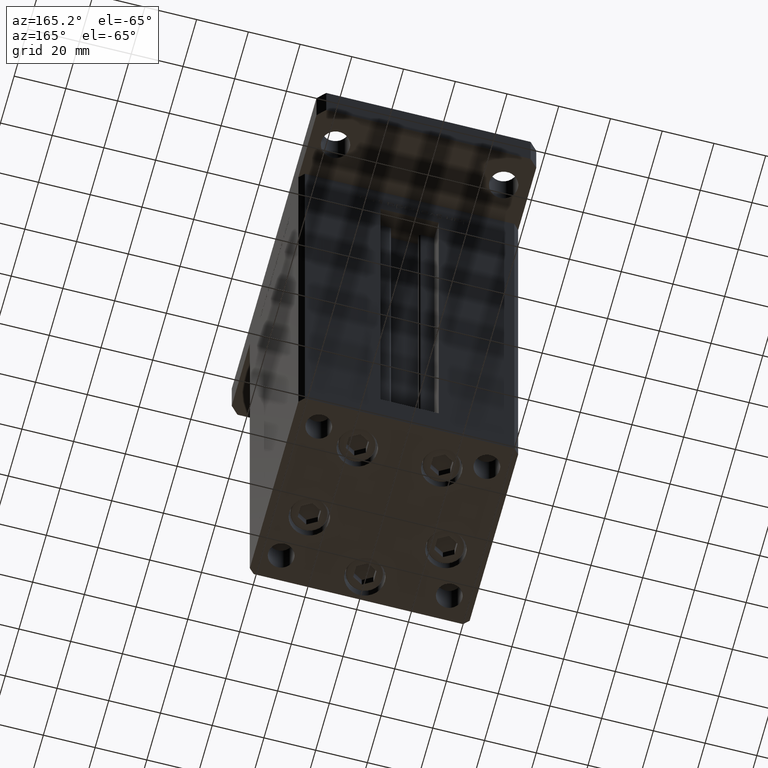
[diagram: clean part render]
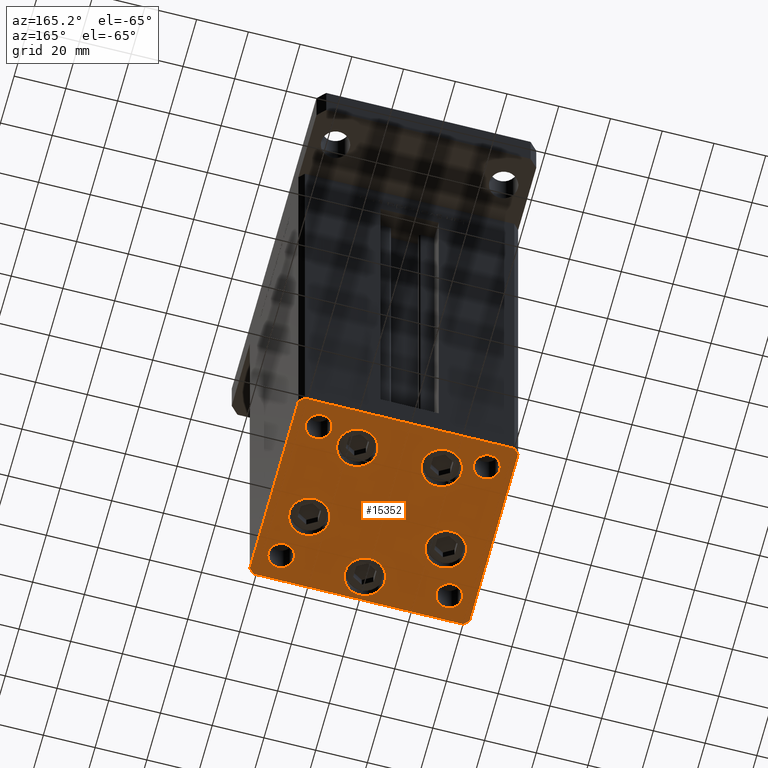
[diagram: same view with one face highlighted and labeled with its STEP entity id]
A machine part, auxiliary view. The second image highlights one B-rep face of the part: STEP entity #15352.
In plain terms, the highlighted planar face has unit normal (0, 0, -1).
Its self-contained STEP definition (entity closure, byte-faithful):
#441 = EDGE_LOOP ( 'NONE', ( #46210, #13943 ) ) ;
#462 = EDGE_CURVE ( 'NONE', #11969, #36350, #28060, .T. ) ;
#577 = EDGE_CURVE ( 'NONE', #29243, #29291, #38392, .T. ) ;
#824 = ORIENTED_EDGE ( 'NONE', *, *, #18983, .T. ) ;
#862 = FACE_BOUND ( 'NONE', #25020, .T. ) ;
#928 = AXIS2_PLACEMENT_3D ( 'NONE', #20264, #2902, #49268 ) ;
#966 = CIRCLE ( 'NONE', #928, 5.000000000000000888 ) ;
#1220 = DIRECTION ( 'NONE',  ( 0.000000000000000000, -0.000000000000000000, -1.000000000000000000 ) ) ;
#1293 = ORIENTED_EDGE ( 'NONE', *, *, #7826, .T. ) ;
#1398 = CARTESIAN_POINT ( 'NONE',  ( 26.39865316429776954, -9.333333333333330373, 0.000000000000000000 ) ) ;
#1490 = AXIS2_PLACEMENT_3D ( 'NONE', #33166, #9279, #8753 ) ;
#1553 = VERTEX_POINT ( 'NONE', #43475 ) ;
#1705 = AXIS2_PLACEMENT_3D ( 'NONE', #7838, #23856, #8102 ) ;
#1989 = EDGE_LOOP ( 'NONE', ( #43418, #25316 ) ) ;
#2520 = ORIENTED_EDGE ( 'NONE', *, *, #17603, .T. ) ;
#2709 = DIRECTION ( 'NONE',  ( 1.000000000000000000, 1.713307136767217096E-16, 0.000000000000000000 ) ) ;
#2795 = DIRECTION ( 'NONE',  ( 0.000000000000000000, -0.000000000000000000, -1.000000000000000000 ) ) ;
#2811 = CARTESIAN_POINT ( 'NONE',  ( 16.32291334290542295, 22.75000000000000000, 0.000000000000000000 ) ) ;
#2902 = DIRECTION ( 'NONE',  ( -0.000000000000000000, 0.000000000000000000, 1.000000000000000000 ) ) ;
#2998 = DIRECTION ( 'NONE',  ( -0.000000000000000000, 0.000000000000000000, 1.000000000000000000 ) ) ;
#3052 = DIRECTION ( 'NONE',  ( 1.000000000000000000, 0.000000000000000000, 0.000000000000000000 ) ) ;
#3073 = ORIENTED_EDGE ( 'NONE', *, *, #40510, .F. ) ;
#3297 = EDGE_CURVE ( 'NONE', #16725, #33220, #28127, .T. ) ;
#3658 = EDGE_LOOP ( 'NONE', ( #33090, #6039 ) ) ;
#3694 = EDGE_CURVE ( 'NONE', #22944, #8537, #48019, .T. ) ;
#3849 = CARTESIAN_POINT ( 'NONE',  ( 32.50000000000000000, 27.49999999999999645, 0.000000000000000000 ) ) ;
#4151 = ORIENTED_EDGE ( 'NONE', *, *, #44840, .T. ) ;
#4867 = DIRECTION ( 'NONE',  ( 1.000000000000000000, 0.000000000000000000, 0.000000000000000000 ) ) ;
#5441 = DIRECTION ( 'NONE',  ( 0.000000000000000000, -0.000000000000000000, -1.000000000000000000 ) ) ;
#5561 = AXIS2_PLACEMENT_3D ( 'NONE', #3849, #20419, #53494 ) ;
#5682 = VERTEX_POINT ( 'NONE', #39978 ) ;
#6039 = ORIENTED_EDGE ( 'NONE', *, *, #46910, .T. ) ;
#7383 = VECTOR ( 'NONE', #17494, 1000.000000000000114 ) ;
#7453 = VERTEX_POINT ( 'NONE', #52389 ) ;
#7597 = DIRECTION ( 'NONE',  ( -1.172770800660376741E-15, 1.000000000000000000, 0.000000000000000000 ) ) ;
#7826 = EDGE_CURVE ( 'NONE', #12740, #21531, #24397, .T. ) ;
#7838 = CARTESIAN_POINT ( 'NONE',  ( -16.32291334290543006, 22.74999999999999645, 0.000000000000000000 ) ) ;
#7865 = EDGE_CURVE ( 'NONE', #21531, #33217, #50132, .T. ) ;
#7935 = EDGE_CURVE ( 'NONE', #7453, #21453, #43330, .T. ) ;
#8102 = DIRECTION ( 'NONE',  ( 1.000000000000000000, 0.000000000000000000, 0.000000000000000000 ) ) ;
#8537 = VERTEX_POINT ( 'NONE', #11716 ) ;
#8753 = DIRECTION ( 'NONE',  ( 1.000000000000000000, 0.000000000000000000, 0.000000000000000000 ) ) ;
#9011 = FACE_OUTER_BOUND ( 'NONE', #16067, .T. ) ;
#9178 = CARTESIAN_POINT ( 'NONE',  ( 40.50000000000000000, -37.50000000000000711, 0.000000000000000000 ) ) ;
#9279 = DIRECTION ( 'NONE',  ( -0.000000000000000000, 0.000000000000000000, 1.000000000000000000 ) ) ;
#9562 = ORIENTED_EDGE ( 'NONE', *, *, #45964, .T. ) ;
#9589 = VERTEX_POINT ( 'NONE', #32285 ) ;
#9615 = CARTESIAN_POINT ( 'NONE',  ( 42.49999999999992895, 35.50000000000000000, 0.000000000000000000 ) ) ;
#9637 = AXIS2_PLACEMENT_3D ( 'NONE', #1398, #10363, #50758 ) ;
#9913 = CARTESIAN_POINT ( 'NONE',  ( 3.429011037612589276E-15, -28.00000000000000000, 0.000000000000000000 ) ) ;
#10272 = EDGE_CURVE ( 'NONE', #48808, #5682, #42203, .T. ) ;
#10363 = DIRECTION ( 'NONE',  ( 0.000000000000000000, -0.000000000000000000, -1.000000000000000000 ) ) ;
#10394 = CIRCLE ( 'NONE', #1705, 7.750000000000000000 ) ;
#10546 = CIRCLE ( 'NONE', #17469, 4.999999999999997335 ) ;
#10653 = DIRECTION ( 'NONE',  ( 1.000000000000000000, 0.000000000000000000, 0.000000000000000000 ) ) ;
#10738 = VERTEX_POINT ( 'NONE', #41285 ) ;
#10958 = DIRECTION ( 'NONE',  ( 1.000000000000000000, 0.000000000000000000, 0.000000000000000000 ) ) ;
#11716 = CARTESIAN_POINT ( 'NONE',  ( -27.50000000000000000, 27.50000000000000355, 0.000000000000000000 ) ) ;
#11749 = DIRECTION ( 'NONE',  ( 0.000000000000000000, -0.000000000000000000, -1.000000000000000000 ) ) ;
#11969 = VERTEX_POINT ( 'NONE', #51354 ) ;
#12313 = CARTESIAN_POINT ( 'NONE',  ( -26.39865316429776954, -9.333333333333337478, 0.000000000000000000 ) ) ;
#12397 = CARTESIAN_POINT ( 'NONE',  ( -37.50000000000000711, 27.50000000000000355, 0.000000000000000000 ) ) ;
#12473 = DIRECTION ( 'NONE',  ( 1.000000000000000000, 0.000000000000000000, 0.000000000000000000 ) ) ;
#12544 = EDGE_CURVE ( 'NONE', #51194, #9589, #21372, .T. ) ;
#12699 = CARTESIAN_POINT ( 'NONE',  ( 34.14865316429776954, -9.333333333333328596, 0.000000000000000000 ) ) ;
#12740 = VERTEX_POINT ( 'NONE', #40571 ) ;
#12807 = AXIS2_PLACEMENT_3D ( 'NONE', #35141, #1220, #46526 ) ;
#13099 = CIRCLE ( 'NONE', #9637, 7.750000000000000000 ) ;
#13340 = FACE_BOUND ( 'NONE', #24177, .T. ) ;
#13940 = CIRCLE ( 'NONE', #44254, 4.999999999999997335 ) ;
#13943 = ORIENTED_EDGE ( 'NONE', *, *, #49443, .T. ) ;
#14348 = FACE_BOUND ( 'NONE', #24349, .T. ) ;
#14574 = DIRECTION ( 'NONE',  ( -1.000000000000000000, -3.426614273534436165E-16, 0.000000000000000000 ) ) ;
#15087 = CARTESIAN_POINT ( 'NONE',  ( -8.572913342905431833, 22.74999999999999645, 0.000000000000000000 ) ) ;
#15352 = ADVANCED_FACE ( 'NONE', ( #29373, #13340, #37223, #25565, #862, #38020, #25303, #14348, #9011, #25034 ), #33961, .T. ) ;
#15767 = AXIS2_PLACEMENT_3D ( 'NONE', #44984, #23602, #23863 ) ;
#16067 = EDGE_LOOP ( 'NONE', ( #26011, #1293, #37584, #28340, #824, #41255, #48076, #24998 ) ) ;
#16725 = VERTEX_POINT ( 'NONE', #28241 ) ;
#17093 = CARTESIAN_POINT ( 'NONE',  ( -32.50000000000000000, -27.49999999999999645, 0.000000000000000000 ) ) ;
#17372 = ORIENTED_EDGE ( 'NONE', *, *, #35564, .T. ) ;
#17469 = AXIS2_PLACEMENT_3D ( 'NONE', #43470, #51591, #10653 ) ;
#17494 = DIRECTION ( 'NONE',  ( -0.7071067811865474617, 0.7071067811865474617, 0.000000000000000000 ) ) ;
#17580 = CARTESIAN_POINT ( 'NONE',  ( -42.50000000000000711, 35.49999999999997158, 0.000000000000000000 ) ) ;
#17603 = EDGE_CURVE ( 'NONE', #22126, #48213, #43723, .T. ) ;
#17714 = VERTEX_POINT ( 'NONE', #12699 ) ;
#18247 = CIRCLE ( 'NONE', #24304, 7.750000000000003553 ) ;
#18390 = DIRECTION ( 'NONE',  ( 9.773090005503140331E-17, -1.000000000000000000, 0.000000000000000000 ) ) ;
#18983 = EDGE_CURVE ( 'NONE', #1553, #51194, #25115, .T. ) ;
#19563 = DIRECTION ( 'NONE',  ( 1.000000000000000000, 0.000000000000000000, 0.000000000000000000 ) ) ;
#20188 = AXIS2_PLACEMENT_3D ( 'NONE', #25557, #5441, #38012 ) ;
#20264 = CARTESIAN_POINT ( 'NONE',  ( -32.50000000000000000, 27.50000000000000355, 0.000000000000000000 ) ) ;
#20363 = AXIS2_PLACEMENT_3D ( 'NONE', #27393, #47164, #43914 ) ;
#20366 = EDGE_LOOP ( 'NONE', ( #9562, #4151 ) ) ;
#20419 = DIRECTION ( 'NONE',  ( -0.000000000000000000, 0.000000000000000000, 1.000000000000000000 ) ) ;
#21056 = VERTEX_POINT ( 'NONE', #26450 ) ;
#21308 = DIRECTION ( 'NONE',  ( 1.000000000000000000, 0.000000000000000000, 0.000000000000000000 ) ) ;
#21369 = CIRCLE ( 'NONE', #40433, 7.750000000000000000 ) ;
#21372 = LINE ( 'NONE', #26236, #27598 ) ;
#21453 = VERTEX_POINT ( 'NONE', #22038 ) ;
#21481 = VECTOR ( 'NONE', #7597, 1000.000000000000000 ) ;
#21515 = VECTOR ( 'NONE', #43100, 1000.000000000000000 ) ;
#21531 = VERTEX_POINT ( 'NONE', #52670 ) ;
#22038 = CARTESIAN_POINT ( 'NONE',  ( -42.50000000000000000, -35.50000000000000711, 0.000000000000000000 ) ) ;
#22126 = VERTEX_POINT ( 'NONE', #47812 ) ;
#22139 = CARTESIAN_POINT ( 'NONE',  ( -27.50000000000000000, -27.49999999999999645, 0.000000000000000000 ) ) ;
#22409 = DIRECTION ( 'NONE',  ( 1.000000000000000000, 0.000000000000000000, 0.000000000000000000 ) ) ;
#22442 = VERTEX_POINT ( 'NONE', #29353 ) ;
#22931 = AXIS2_PLACEMENT_3D ( 'NONE', #40156, #2998, #19563 ) ;
#22944 = VERTEX_POINT ( 'NONE', #12397 ) ;
#23082 = EDGE_CURVE ( 'NONE', #22442, #10738, #21369, .T. ) ;
#23220 = ORIENTED_EDGE ( 'NONE', *, *, #25276, .T. ) ;
#23602 = DIRECTION ( 'NONE',  ( 0.000000000000000000, -0.000000000000000000, -1.000000000000000000 ) ) ;
#23856 = DIRECTION ( 'NONE',  ( 0.000000000000000000, -0.000000000000000000, -1.000000000000000000 ) ) ;
#23863 = DIRECTION ( 'NONE',  ( 1.000000000000000000, 0.000000000000000000, 0.000000000000000000 ) ) ;
#24177 = EDGE_LOOP ( 'NONE', ( #2520, #40488 ) ) ;
#24304 = AXIS2_PLACEMENT_3D ( 'NONE', #2811, #11749, #10958 ) ;
#24349 = EDGE_LOOP ( 'NONE', ( #3073, #34562 ) ) ;
#24397 = LINE ( 'NONE', #40925, #30867 ) ;
#24412 = LINE ( 'NONE', #28216, #21481 ) ;
#24998 = ORIENTED_EDGE ( 'NONE', *, *, #7935, .T. ) ;
#25020 = EDGE_LOOP ( 'NONE', ( #29213, #45859 ) ) ;
#25034 = FACE_BOUND ( 'NONE', #441, .T. ) ;
#25115 = LINE ( 'NONE', #9615, #7383 ) ;
#25276 = EDGE_CURVE ( 'NONE', #52860, #29532, #49153, .T. ) ;
#25303 = FACE_BOUND ( 'NONE', #3658, .T. ) ;
#25316 = ORIENTED_EDGE ( 'NONE', *, *, #44357, .F. ) ;
#25462 = AXIS2_PLACEMENT_3D ( 'NONE', #36612, #25501, #42020 ) ;
#25501 = DIRECTION ( 'NONE',  ( 0.000000000000000000, -0.000000000000000000, -1.000000000000000000 ) ) ;
#25557 = CARTESIAN_POINT ( 'NONE',  ( -32.50000000000000000, -27.49999999999999645, 0.000000000000000000 ) ) ;
#25565 = FACE_BOUND ( 'NONE', #53471, .T. ) ;
#25775 = AXIS2_PLACEMENT_3D ( 'NONE', #12313, #53251, #48396 ) ;
#26011 = ORIENTED_EDGE ( 'NONE', *, *, #35254, .T. ) ;
#26236 = CARTESIAN_POINT ( 'NONE',  ( 40.49999999999991473, 37.50000000000000711, 0.000000000000000000 ) ) ;
#26450 = CARTESIAN_POINT ( 'NONE',  ( 18.64865316429776954, -9.333333333333330373, 0.000000000000000000 ) ) ;
#26574 = LINE ( 'NONE', #30349, #21515 ) ;
#26674 = CIRCLE ( 'NONE', #46573, 7.750000000000000000 ) ;
#27302 = EDGE_CURVE ( 'NONE', #33217, #1553, #24412, .T. ) ;
#27393 = CARTESIAN_POINT ( 'NONE',  ( 16.32291334290542295, 22.75000000000000000, 0.000000000000000000 ) ) ;
#27442 = VECTOR ( 'NONE', #37125, 1000.000000000000114 ) ;
#27598 = VECTOR ( 'NONE', #14574, 1000.000000000000000 ) ;
#27676 = CARTESIAN_POINT ( 'NONE',  ( 40.49999999999991473, 37.50000000000000711, 0.000000000000000000 ) ) ;
#28000 = LINE ( 'NONE', #44510, #38941 ) ;
#28060 = CIRCLE ( 'NONE', #25462, 4.999999999999997335 ) ;
#28127 = CIRCLE ( 'NONE', #5561, 4.999999999999997335 ) ;
#28216 = CARTESIAN_POINT ( 'NONE',  ( 42.50000000000000711, -35.50000000000000000, 0.000000000000000000 ) ) ;
#28241 = CARTESIAN_POINT ( 'NONE',  ( 37.50000000000000000, 27.49999999999999645, 0.000000000000000000 ) ) ;
#28340 = ORIENTED_EDGE ( 'NONE', *, *, #27302, .T. ) ;
#29213 = ORIENTED_EDGE ( 'NONE', *, *, #10272, .T. ) ;
#29243 = VERTEX_POINT ( 'NONE', #22139 ) ;
#29291 = VERTEX_POINT ( 'NONE', #39483 ) ;
#29353 = CARTESIAN_POINT ( 'NONE',  ( 7.750000000000003553, -28.00000000000000000, 0.000000000000000000 ) ) ;
#29373 = FACE_BOUND ( 'NONE', #44207, .T. ) ;
#29532 = VERTEX_POINT ( 'NONE', #34828 ) ;
#30257 = CARTESIAN_POINT ( 'NONE',  ( 24.07291334290542650, 22.75000000000000000, 0.000000000000000000 ) ) ;
#30349 = CARTESIAN_POINT ( 'NONE',  ( -40.50000000000000711, 37.49999999999997868, 0.000000000000000000 ) ) ;
#30867 = VECTOR ( 'NONE', #2709, 1000.000000000000000 ) ;
#30906 = EDGE_CURVE ( 'NONE', #5682, #48808, #26674, .T. ) ;
#31221 = CARTESIAN_POINT ( 'NONE',  ( -34.14865316429776954, -9.333333333333337478, 0.000000000000000000 ) ) ;
#32185 = EDGE_CURVE ( 'NONE', #9589, #7453, #26574, .T. ) ;
#32285 = CARTESIAN_POINT ( 'NONE',  ( -40.50000000000000711, 37.49999999999997868, 0.000000000000000000 ) ) ;
#33090 = ORIENTED_EDGE ( 'NONE', *, *, #462, .T. ) ;
#33166 = CARTESIAN_POINT ( 'NONE',  ( 0.000000000000000000, 0.000000000000000000, 0.000000000000000000 ) ) ;
#33217 = VERTEX_POINT ( 'NONE', #52240 ) ;
#33220 = VERTEX_POINT ( 'NONE', #46819 ) ;
#33961 = PLANE ( 'NONE',  #1490 ) ;
#34562 = ORIENTED_EDGE ( 'NONE', *, *, #3694, .F. ) ;
#34828 = CARTESIAN_POINT ( 'NONE',  ( -24.07291334290543006, 22.74999999999999645, 0.000000000000000000 ) ) ;
#35141 = CARTESIAN_POINT ( 'NONE',  ( -16.32291334290543006, 22.74999999999999645, 0.000000000000000000 ) ) ;
#35254 = EDGE_CURVE ( 'NONE', #21453, #12740, #28000, .T. ) ;
#35564 = EDGE_CURVE ( 'NONE', #29532, #52860, #10394, .T. ) ;
#36350 = VERTEX_POINT ( 'NONE', #45253 ) ;
#36612 = CARTESIAN_POINT ( 'NONE',  ( 32.50000000000000000, -27.49999999999999645, 0.000000000000000000 ) ) ;
#36663 = AXIS2_PLACEMENT_3D ( 'NONE', #17093, #50163, #4867 ) ;
#37039 = DIRECTION ( 'NONE',  ( 0.000000000000000000, -0.000000000000000000, -1.000000000000000000 ) ) ;
#37125 = DIRECTION ( 'NONE',  ( 0.7071067811865474617, 0.7071067811865474617, 0.000000000000000000 ) ) ;
#37223 = FACE_BOUND ( 'NONE', #20366, .T. ) ;
#37584 = ORIENTED_EDGE ( 'NONE', *, *, #7865, .T. ) ;
#38012 = DIRECTION ( 'NONE',  ( 1.000000000000000000, 0.000000000000000000, 0.000000000000000000 ) ) ;
#38020 = FACE_BOUND ( 'NONE', #1989, .T. ) ;
#38392 = CIRCLE ( 'NONE', #36663, 5.000000000000000888 ) ;
#38941 = VECTOR ( 'NONE', #48850, 1000.000000000000000 ) ;
#38953 = EDGE_CURVE ( 'NONE', #48213, #22126, #18247, .T. ) ;
#39483 = CARTESIAN_POINT ( 'NONE',  ( -37.50000000000000711, -27.49999999999999645, 0.000000000000000000 ) ) ;
#39978 = CARTESIAN_POINT ( 'NONE',  ( -18.64865316429776954, -9.333333333333335702, 0.000000000000000000 ) ) ;
#40156 = CARTESIAN_POINT ( 'NONE',  ( -32.50000000000000000, 27.50000000000000355, 0.000000000000000000 ) ) ;
#40433 = AXIS2_PLACEMENT_3D ( 'NONE', #9913, #43003, #22409 ) ;
#40488 = ORIENTED_EDGE ( 'NONE', *, *, #38953, .T. ) ;
#40510 = EDGE_CURVE ( 'NONE', #8537, #22944, #966, .T. ) ;
#40571 = CARTESIAN_POINT ( 'NONE',  ( -40.49999999999999289, -37.50000000000002132, 0.000000000000000000 ) ) ;
#40925 = CARTESIAN_POINT ( 'NONE',  ( -40.49999999999999289, -37.50000000000002132, 0.000000000000000000 ) ) ;
#41100 = CARTESIAN_POINT ( 'NONE',  ( -26.39865316429776954, -9.333333333333337478, 0.000000000000000000 ) ) ;
#41255 = ORIENTED_EDGE ( 'NONE', *, *, #12544, .T. ) ;
#41285 = CARTESIAN_POINT ( 'NONE',  ( -7.749999999999996447, -28.00000000000000000, 0.000000000000000000 ) ) ;
#42020 = DIRECTION ( 'NONE',  ( 1.000000000000000000, 0.000000000000000000, 0.000000000000000000 ) ) ;
#42203 = CIRCLE ( 'NONE', #25775, 7.750000000000000000 ) ;
#42970 = VECTOR ( 'NONE', #18390, 1000.000000000000000 ) ;
#43003 = DIRECTION ( 'NONE',  ( 0.000000000000000000, -0.000000000000000000, -1.000000000000000000 ) ) ;
#43100 = DIRECTION ( 'NONE',  ( -0.7071067811865463515, -0.7071067811865487940, 0.000000000000000000 ) ) ;
#43330 = LINE ( 'NONE', #17580, #42970 ) ;
#43418 = ORIENTED_EDGE ( 'NONE', *, *, #3297, .F. ) ;
#43470 = CARTESIAN_POINT ( 'NONE',  ( 32.50000000000000000, -27.49999999999999645, 0.000000000000000000 ) ) ;
#43475 = CARTESIAN_POINT ( 'NONE',  ( 42.49999999999992895, 35.50000000000000000, 0.000000000000000000 ) ) ;
#43491 = ORIENTED_EDGE ( 'NONE', *, *, #43943, .T. ) ;
#43723 = CIRCLE ( 'NONE', #20363, 7.750000000000003553 ) ;
#43914 = DIRECTION ( 'NONE',  ( 1.000000000000000000, 0.000000000000000000, 0.000000000000000000 ) ) ;
#43943 = EDGE_CURVE ( 'NONE', #10738, #22442, #52929, .T. ) ;
#44207 = EDGE_LOOP ( 'NONE', ( #17372, #23220 ) ) ;
#44254 = AXIS2_PLACEMENT_3D ( 'NONE', #53425, #49876, #12473 ) ;
#44357 = EDGE_CURVE ( 'NONE', #33220, #16725, #13940, .T. ) ;
#44510 = CARTESIAN_POINT ( 'NONE',  ( -42.50000000000000000, -35.50000000000000711, 0.000000000000000000 ) ) ;
#44840 = EDGE_CURVE ( 'NONE', #17714, #21056, #13099, .T. ) ;
#44984 = CARTESIAN_POINT ( 'NONE',  ( 26.39865316429776954, -9.333333333333330373, 0.000000000000000000 ) ) ;
#45253 = CARTESIAN_POINT ( 'NONE',  ( 27.50000000000000355, -27.49999999999999645, 0.000000000000000000 ) ) ;
#45859 = ORIENTED_EDGE ( 'NONE', *, *, #30906, .T. ) ;
#45964 = EDGE_CURVE ( 'NONE', #21056, #17714, #51250, .T. ) ;
#46210 = ORIENTED_EDGE ( 'NONE', *, *, #577, .T. ) ;
#46449 = ORIENTED_EDGE ( 'NONE', *, *, #23082, .T. ) ;
#46526 = DIRECTION ( 'NONE',  ( 1.000000000000000000, 0.000000000000000000, 0.000000000000000000 ) ) ;
#46573 = AXIS2_PLACEMENT_3D ( 'NONE', #41100, #37039, #21308 ) ;
#46819 = CARTESIAN_POINT ( 'NONE',  ( 27.50000000000000355, 27.49999999999999645, 0.000000000000000000 ) ) ;
#46826 = AXIS2_PLACEMENT_3D ( 'NONE', #48622, #2795, #3052 ) ;
#46910 = EDGE_CURVE ( 'NONE', #36350, #11969, #10546, .T. ) ;
#47164 = DIRECTION ( 'NONE',  ( 0.000000000000000000, -0.000000000000000000, -1.000000000000000000 ) ) ;
#47812 = CARTESIAN_POINT ( 'NONE',  ( 8.572913342905422951, 22.75000000000000000, 0.000000000000000000 ) ) ;
#48019 = CIRCLE ( 'NONE', #22931, 5.000000000000000888 ) ;
#48076 = ORIENTED_EDGE ( 'NONE', *, *, #32185, .T. ) ;
#48213 = VERTEX_POINT ( 'NONE', #30257 ) ;
#48396 = DIRECTION ( 'NONE',  ( 1.000000000000000000, 0.000000000000000000, 0.000000000000000000 ) ) ;
#48622 = CARTESIAN_POINT ( 'NONE',  ( 3.429011037612589276E-15, -28.00000000000000000, 0.000000000000000000 ) ) ;
#48808 = VERTEX_POINT ( 'NONE', #31221 ) ;
#48850 = DIRECTION ( 'NONE',  ( 0.7071067811865463515, -0.7071067811865487940, 0.000000000000000000 ) ) ;
#49153 = CIRCLE ( 'NONE', #12807, 7.750000000000000000 ) ;
#49268 = DIRECTION ( 'NONE',  ( 1.000000000000000000, 0.000000000000000000, 0.000000000000000000 ) ) ;
#49443 = EDGE_CURVE ( 'NONE', #29291, #29243, #53080, .T. ) ;
#49876 = DIRECTION ( 'NONE',  ( -0.000000000000000000, 0.000000000000000000, 1.000000000000000000 ) ) ;
#50132 = LINE ( 'NONE', #9178, #27442 ) ;
#50163 = DIRECTION ( 'NONE',  ( 0.000000000000000000, -0.000000000000000000, -1.000000000000000000 ) ) ;
#50758 = DIRECTION ( 'NONE',  ( 1.000000000000000000, 0.000000000000000000, 0.000000000000000000 ) ) ;
#51194 = VERTEX_POINT ( 'NONE', #27676 ) ;
#51250 = CIRCLE ( 'NONE', #15767, 7.750000000000000000 ) ;
#51354 = CARTESIAN_POINT ( 'NONE',  ( 37.50000000000000000, -27.49999999999999645, 0.000000000000000000 ) ) ;
#51591 = DIRECTION ( 'NONE',  ( 0.000000000000000000, -0.000000000000000000, -1.000000000000000000 ) ) ;
#52240 = CARTESIAN_POINT ( 'NONE',  ( 42.50000000000000711, -35.50000000000000000, 0.000000000000000000 ) ) ;
#52389 = CARTESIAN_POINT ( 'NONE',  ( -42.50000000000000711, 35.49999999999997158, 0.000000000000000000 ) ) ;
#52670 = CARTESIAN_POINT ( 'NONE',  ( 40.50000000000000000, -37.50000000000000711, 0.000000000000000000 ) ) ;
#52860 = VERTEX_POINT ( 'NONE', #15087 ) ;
#52929 = CIRCLE ( 'NONE', #46826, 7.750000000000000000 ) ;
#53080 = CIRCLE ( 'NONE', #20188, 5.000000000000000888 ) ;
#53251 = DIRECTION ( 'NONE',  ( 0.000000000000000000, -0.000000000000000000, -1.000000000000000000 ) ) ;
#53425 = CARTESIAN_POINT ( 'NONE',  ( 32.50000000000000000, 27.49999999999999645, 0.000000000000000000 ) ) ;
#53471 = EDGE_LOOP ( 'NONE', ( #43491, #46449 ) ) ;
#53494 = DIRECTION ( 'NONE',  ( 1.000000000000000000, 0.000000000000000000, 0.000000000000000000 ) ) ;